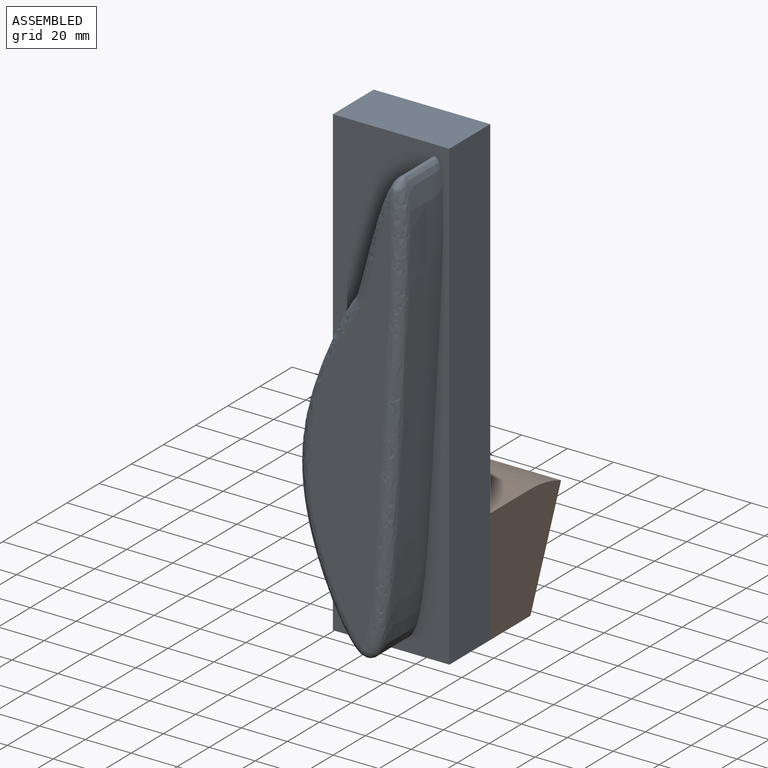
[diagram: assembled view]
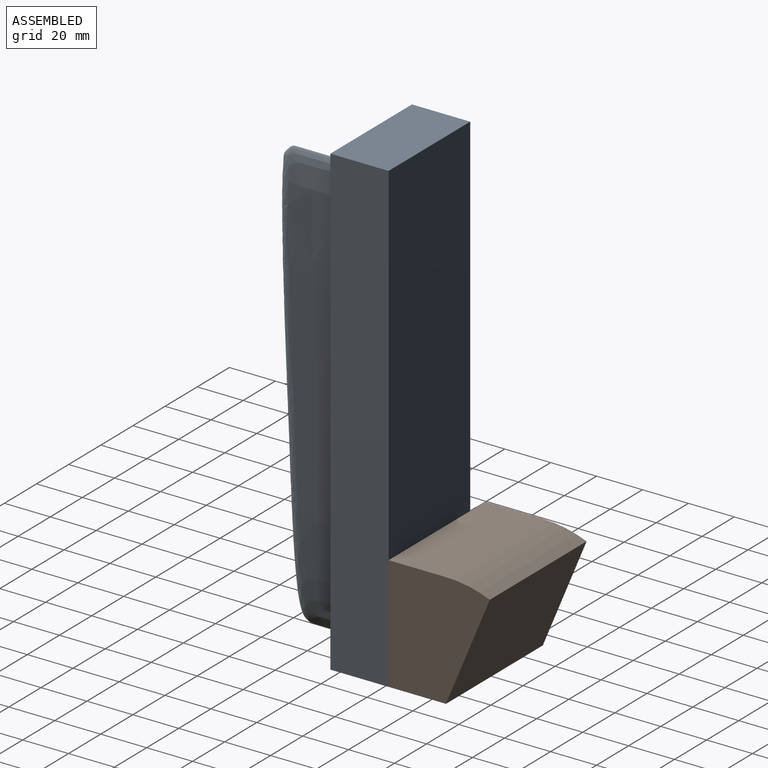
[diagram: assembled view, second angle]
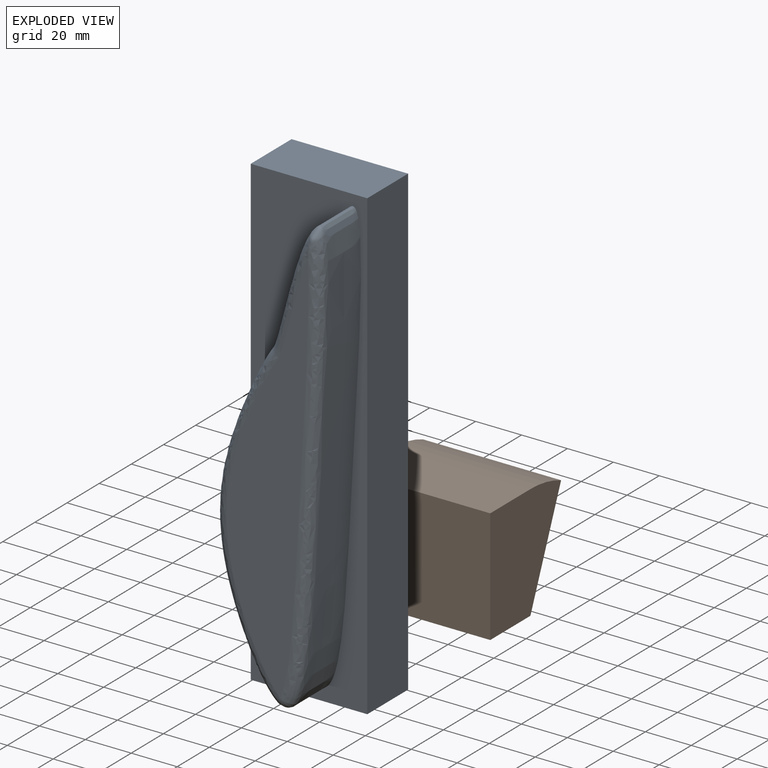
[diagram: exploded view]
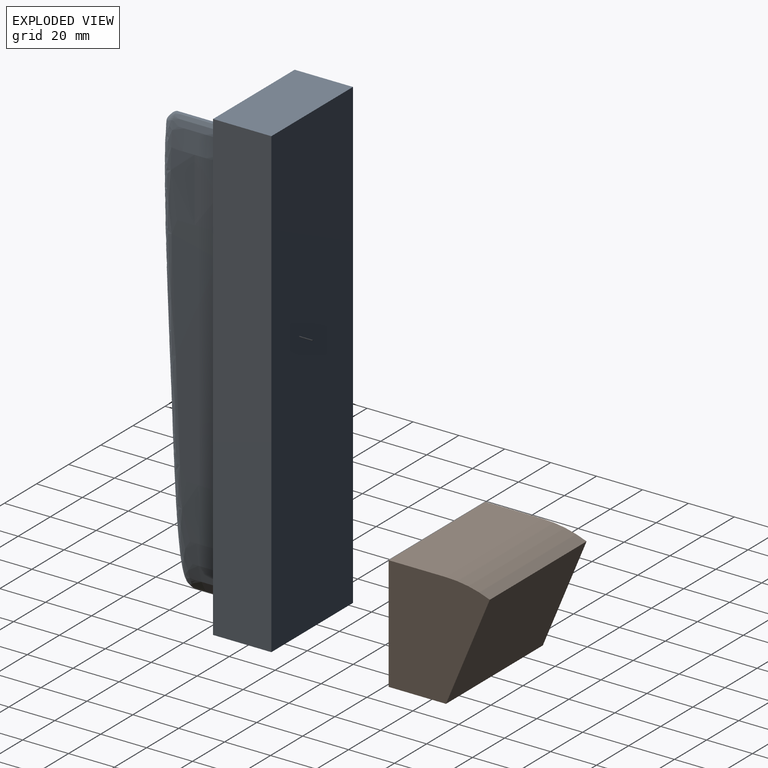
[diagram: exploded view, second angle]
ASSEMBLY  parts=2 mates=3
PART A: 12 faces, bbox 53.7x50.8x204.5 mm
  f0: plane 203.2x25.4mm, normal (-1,0,0), area 5161.3mm2, adj f1,f3,f4,f5
  f1: plane 50.8x25.4mm, normal (0,0,-1), area 1290.3mm2, adj f0,f2,f4,f5
  f2: plane 203.2x25.4mm, normal (1,0,0), area 5161.3mm2, adj f1,f3,f4,f5
  f3: plane 50.8x25.4mm, normal (0,0,1), area 1290.3mm2, adj f0,f2,f4,f5
  f4: plane 204.51x53.69mm, normal (0,-1,0), area 4985.4mm2, adj f0,f1,f2,f3,f6
  f5: plane 203.2x50.8mm, normal (0,1,0), area 10322.6mm2, adj f0,f1,f2,f3
  f6: extruded ~193.01x45.86mm, area 8292.5mm2, adj f4,f8,f9,f10,f11
  f7: plane 175.9x35.95mm, normal (0,-1,0), area 3361.4mm2, adj f9,f10
  f8: bspline ~6.57x5.56mm, area 24.8mm2, adj f6,f9,f10
  f9: bspline ~188.48x17.9mm, area 1459.7mm2, adj f6,f7,f8,f11
  f10: bspline ~190.4x44.15mm, area 1565.8mm2, adj f6,f7,f8,f11
  f11: bspline ~11.67x5.08mm, area 32.9mm2, adj f6,f9,f10
PART B: 7 faces, bbox 49.9x60.2x44.1 mm
  f0: plane 60.24x25mm, normal (1,0,0), area 1505.9mm2, adj f1,f3,f4,f6
  f1: plane 49.89x44.09mm, normal (0,1,0), area 1735.9mm2, adj f0,f2,f4,f5,f6
  f2: plane 60.24x25mm, normal (-1,0,0), area 1505.9mm2, adj f1,f3,f4,f5
  f3: plane 49.89x44.09mm, normal (0,-1,0), area 1735.9mm2, adj f0,f2,f4,f5,f6
  f4: plane 60.24x49.89mm, normal (0,0,-1), area 3005.2mm2, adj f0,f1,f2,f3
  f5: cylinder r=49.89mm len=60.24mm, axis (0,1,0), area 1180.1mm2, adj f1,f2,f3,f6
  f6: plane 60.24x46.09mm, normal (0.38,0,0.92), area 3005.2mm2, adj f0,f1,f3,f5
PLACE A rot(axis=(0.89,0.26,0.38),0deg) t=(-96.31,25.6,-108.86)mm fixed
PLACE B rot(axis=(-0.58,0.58,0.58),120deg) t=(-45.51,25.6,-58.97)mm
MATE planar B.f4 <-> A.f5  axis (0,-1,0) through (-75.62,25.6,-83.91)mm
MATE planar B.f0 <-> A.f1  axis (0,0,-1) through (-75.62,38.1,-108.86)mm
MATE planar A.f2 <-> B.f3  axis (1,0,0) through (-45.51,12.9,-7.26)mm
